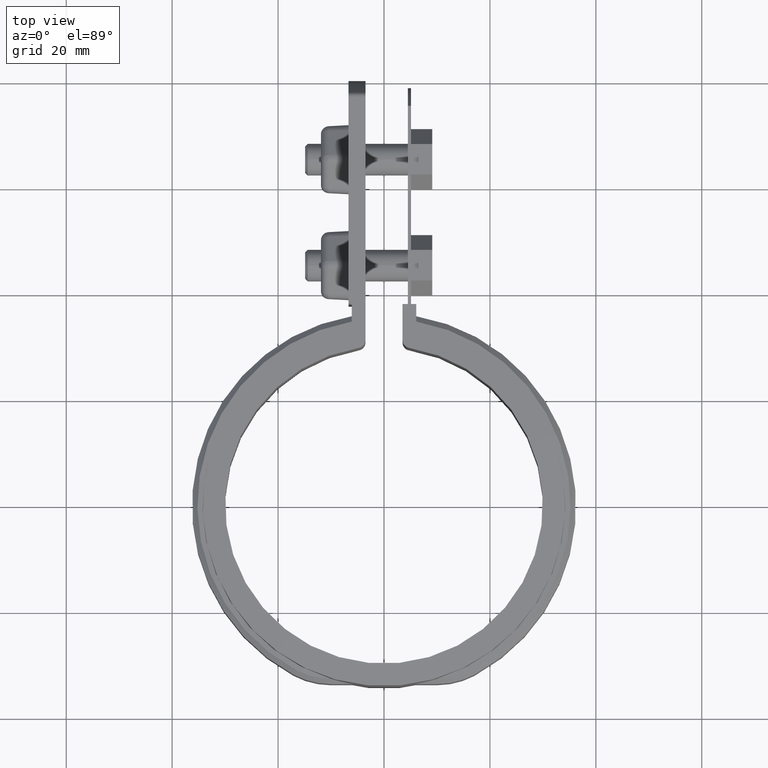
[diagram: clean part render]
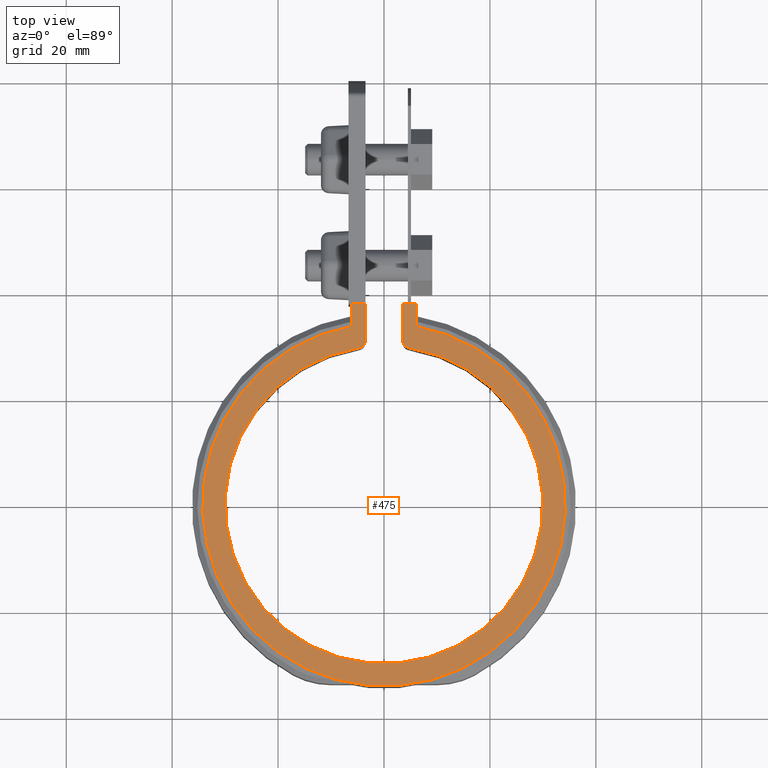
[diagram: same view with one face highlighted and labeled with its STEP entity id]
A machine part, top view. The second image highlights one B-rep face of the part: STEP entity #475.
In plain terms, the highlighted planar face has unit normal (0, 0, 1).
Its self-contained STEP definition (entity closure, byte-faithful):
#475 = ADVANCED_FACE( '', ( #962 ), #963, .T. );
#962 = FACE_OUTER_BOUND( '', #2248, .T. );
#963 = PLANE( '', #2249 );
#2248 = EDGE_LOOP( '', ( #5064, #5065, #5066, #5067, #5068, #5069, #5070, #5071, #5072, #5073 ) );
#2249 = AXIS2_PLACEMENT_3D( '', #5074, #5075, #5076 );
#5064 = ORIENTED_EDGE( '', *, *, #7393, .T. );
#5065 = ORIENTED_EDGE( '', *, *, #7356, .T. );
#5066 = ORIENTED_EDGE( '', *, *, #7394, .T. );
#5067 = ORIENTED_EDGE( '', *, *, #7308, .T. );
#5068 = ORIENTED_EDGE( '', *, *, #7395, .F. );
#5069 = ORIENTED_EDGE( '', *, *, #7236, .T. );
#5070 = ORIENTED_EDGE( '', *, *, #7396, .T. );
#5071 = ORIENTED_EDGE( '', *, *, #7381, .T. );
#5072 = ORIENTED_EDGE( '', *, *, #7321, .T. );
#5073 = ORIENTED_EDGE( '', *, *, #7374, .T. );
#5074 = CARTESIAN_POINT( '', ( 0.000000000000000, 0.000000000000000, 1.50000000000000 ) );
#5075 = DIRECTION( '', ( 0.000000000000000, 0.000000000000000, 1.00000000000000 ) );
#5076 = DIRECTION( '', ( 1.00000000000000, 0.000000000000000, 0.000000000000000 ) );
#7236 = EDGE_CURVE( '', #8316, #8317, #8318, .T. );
#7308 = EDGE_CURVE( '', #8451, #8449, #8452, .T. );
#7321 = EDGE_CURVE( '', #8469, #8470, #8471, .T. );
#7356 = EDGE_CURVE( '', #8521, #8522, #8523, .T. );
#7374 = EDGE_CURVE( '', #8470, #8549, #8551, .T. );
#7381 = EDGE_CURVE( '', #8559, #8469, #8560, .T. );
#7393 = EDGE_CURVE( '', #8549, #8521, #8575, .T. );
#7394 = EDGE_CURVE( '', #8522, #8451, #8576, .T. );
#7395 = EDGE_CURVE( '', #8316, #8449, #8577, .T. );
#7396 = EDGE_CURVE( '', #8317, #8559, #8578, .T. );
#8316 = VERTEX_POINT( '', #11014 );
#8317 = VERTEX_POINT( '', #11015 );
#8318 = CIRCLE( '', #11016, 1.50000000000000 );
#8449 = VERTEX_POINT( '', #11758 );
#8451 = VERTEX_POINT( '', #11761 );
#8452 = CIRCLE( '', #11762, 1.50000000000000 );
#8469 = VERTEX_POINT( '', #11861 );
#8470 = VERTEX_POINT( '', #11862 );
#8471 = LINE( '', #11863, #11864 );
#8521 = VERTEX_POINT( '', #12091 );
#8522 = VERTEX_POINT( '', #12092 );
#8523 = LINE( '', #12093, #12094 );
#8549 = VERTEX_POINT( '', #12135 );
#8551 = CIRCLE( '', #12138, 34.2450000000000 );
#8559 = VERTEX_POINT( '', #12148 );
#8560 = LINE( '', #12149, #12150 );
#8575 = LINE( '', #12193, #12194 );
#8576 = LINE( '', #12195, #12196 );
#8577 = CIRCLE( '', #12197, 30.0000000000000 );
#8578 = LINE( '', #12198, #12199 );
#11014 = CARTESIAN_POINT( '', ( -4.76190476190476, 29.6196600763504, 1.50000000000000 ) );
#11015 = CARTESIAN_POINT( '', ( -3.49999999999999, 31.1006430801680, 1.50000000000000 ) );
#11016 = AXIS2_PLACEMENT_3D( '', #13876, #13877, #13878 );
#11758 = CARTESIAN_POINT( '', ( 4.76190476190476, 29.6196600763504, 1.50000000000000 ) );
#11761 = CARTESIAN_POINT( '', ( 3.49999999999999, 31.1006430801680, 1.50000000000000 ) );
#11762 = AXIS2_PLACEMENT_3D( '', #13943, #13944, #13945 );
#11861 = CARTESIAN_POINT( '', ( -6.10000000000002, 37.8989738519314, 1.50000000000000 ) );
#11862 = CARTESIAN_POINT( '', ( -6.10000000000002, 33.6973296419761, 1.50000000000000 ) );
#11863 = CARTESIAN_POINT( '', ( -6.10000000000002, 3.70363462121049E-016, 1.50000000000000 ) );
#11864 = VECTOR( '', #13952, 1000.00000000000 );
#12091 = CARTESIAN_POINT( '', ( 6.09999999999998, 37.8989738519314, 1.50000000000000 ) );
#12092 = CARTESIAN_POINT( '', ( 3.50000000000000, 37.8989738519314, 1.50000000000000 ) );
#12093 = CARTESIAN_POINT( '', ( 0.000000000000000, 37.8989738519314, 1.50000000000000 ) );
#12094 = VECTOR( '', #13988, 1000.00000000000 );
#12135 = CARTESIAN_POINT( '', ( 6.09999999999998, 33.6973296419761, 1.50000000000000 ) );
#12138 = AXIS2_PLACEMENT_3D( '', #14018, #14019, #14020 );
#12148 = CARTESIAN_POINT( '', ( -3.49999999999999, 37.8989738519314, 1.50000000000000 ) );
#12149 = CARTESIAN_POINT( '', ( 0.000000000000000, 37.8989738519314, 1.50000000000000 ) );
#12150 = VECTOR( '', #14035, 1000.00000000000 );
#12193 = CARTESIAN_POINT( '', ( 6.09999999999998, -3.70363462121047E-016, 1.50000000000000 ) );
#12194 = VECTOR( '', #14048, 1000.00000000000 );
#12195 = CARTESIAN_POINT( '', ( 3.50000000000000, -2.12503625807159E-016, 1.50000000000000 ) );
#12196 = VECTOR( '', #14049, 1000.00000000000 );
#12197 = AXIS2_PLACEMENT_3D( '', #14050, #14051, #14052 );
#12198 = CARTESIAN_POINT( '', ( -3.49999999999999, 2.12503625807158E-016, 1.50000000000000 ) );
#12199 = VECTOR( '', #14053, 1000.00000000000 );
#13876 = CARTESIAN_POINT( '', ( -4.99999999999999, 31.1006430801680, 1.50000000000000 ) );
#13877 = DIRECTION( '', ( 0.000000000000000, 0.000000000000000, 1.00000000000000 ) );
#13878 = DIRECTION( '', ( 1.00000000000000, 0.000000000000000, 0.000000000000000 ) );
#13943 = CARTESIAN_POINT( '', ( 4.99999999999999, 31.1006430801680, 1.50000000000000 ) );
#13944 = DIRECTION( '', ( 0.000000000000000, 0.000000000000000, 1.00000000000000 ) );
#13945 = DIRECTION( '', ( 1.00000000000000, 0.000000000000000, 0.000000000000000 ) );
#13952 = DIRECTION( '', ( -6.07153216591882E-017, -1.00000000000000, 0.000000000000000 ) );
#13988 = DIRECTION( '', ( -1.00000000000000, 0.000000000000000, 0.000000000000000 ) );
#14018 = CARTESIAN_POINT( '', ( 0.000000000000000, 0.000000000000000, 1.50000000000000 ) );
#14019 = DIRECTION( '', ( 0.000000000000000, 0.000000000000000, 1.00000000000000 ) );
#14020 = DIRECTION( '', ( 1.00000000000000, 0.000000000000000, 0.000000000000000 ) );
#14035 = DIRECTION( '', ( -1.00000000000000, 0.000000000000000, 0.000000000000000 ) );
#14048 = DIRECTION( '', ( 6.07153216591882E-017, 1.00000000000000, 0.000000000000000 ) );
#14049 = DIRECTION( '', ( -6.07153216591882E-017, -1.00000000000000, 0.000000000000000 ) );
#14050 = CARTESIAN_POINT( '', ( 0.000000000000000, 0.000000000000000, 1.50000000000000 ) );
#14051 = DIRECTION( '', ( 0.000000000000000, 0.000000000000000, 1.00000000000000 ) );
#14052 = DIRECTION( '', ( 1.00000000000000, 0.000000000000000, 0.000000000000000 ) );
#14053 = DIRECTION( '', ( 6.07153216591882E-017, 1.00000000000000, 0.000000000000000 ) );